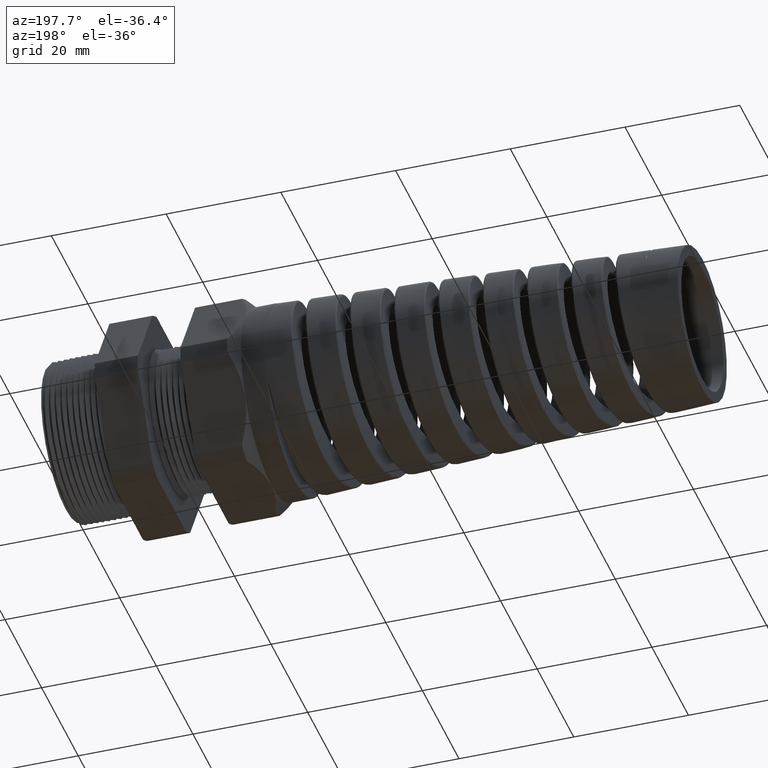
[diagram: clean part render]
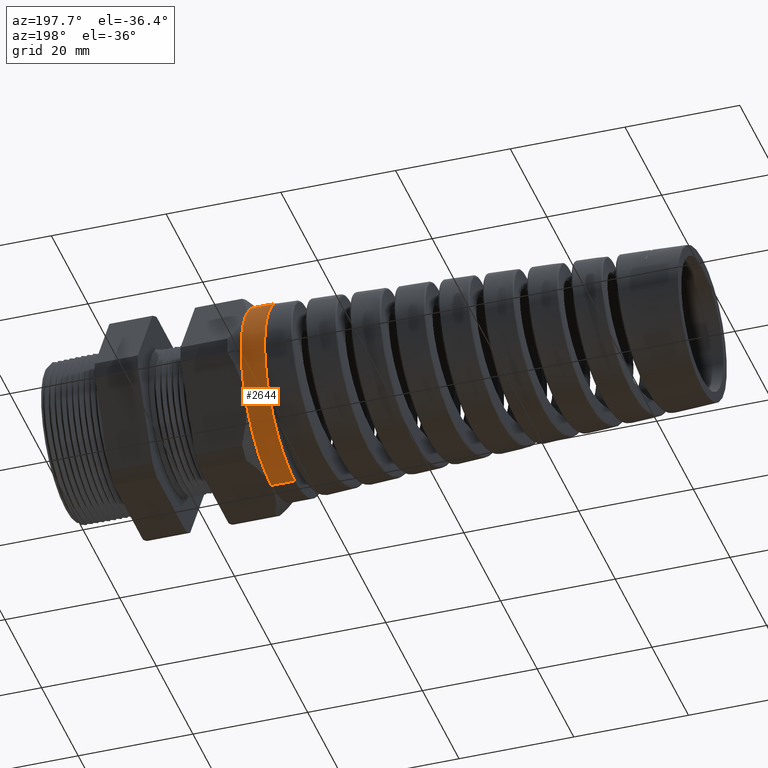
[diagram: same view with one face highlighted and labeled with its STEP entity id]
A machine part, auxiliary view. The second image highlights one B-rep face of the part: STEP entity #2644.
In plain terms, the highlighted cylindrical surface (partial cylindrical patch) has radius 16.51 mm, axis along (1, 0, 0).
Its self-contained STEP definition (entity closure, byte-faithful):
#2644 = ADVANCED_FACE ( 'NONE', ( #14442 ), #14568, .T. ) ;
#2645 = EDGE_LOOP ( 'NONE', ( #2740, #2746, #2663, #2730, #2677, #3044 ) ) ;
#2659 = VERTEX_POINT ( 'NONE', #14613 ) ;
#2660 = VERTEX_POINT ( 'NONE', #14612 ) ;
#2662 = VERTEX_POINT ( 'NONE', #14610 ) ;
#2663 = ORIENTED_EDGE ( 'NONE', *, *, #2733, .F. ) ;
#2677 = ORIENTED_EDGE ( 'NONE', *, *, #2717, .F. ) ;
#2711 = VERTEX_POINT ( 'NONE', #14697 ) ;
#2717 = EDGE_CURVE ( 'NONE', #2662, #2711, #14719, .T. ) ;
#2729 = EDGE_CURVE ( 'NONE', #2711, #2660, #14714, .T. ) ;
#2730 = ORIENTED_EDGE ( 'NONE', *, *, #2729, .F. ) ;
#2733 = EDGE_CURVE ( 'NONE', #2660, #2659, #14704, .T. ) ;
#2739 = EDGE_CURVE ( 'NONE', #2742, #2744, #14806, .T. ) ;
#2740 = ORIENTED_EDGE ( 'NONE', *, *, #2739, .F. ) ;
#2742 = VERTEX_POINT ( 'NONE', #14796 ) ;
#2743 = EDGE_CURVE ( 'NONE', #2742, #2659, #14795, .T. ) ;
#2744 = VERTEX_POINT ( 'NONE', #14791 ) ;
#2746 = ORIENTED_EDGE ( 'NONE', *, *, #2743, .T. ) ;
#3044 = ORIENTED_EDGE ( 'NONE', *, *, #3045, .F. ) ;
#3045 = EDGE_CURVE ( 'NONE', #2744, #2662, #15354, .T. ) ;
#14442 = FACE_OUTER_BOUND ( 'NONE', #2645, .T. ) ;
#14443 = CARTESIAN_POINT ( 'NONE',  ( 0.09602717987635048200, 0.0000000000000000000, 0.0000000000000000000 ) ) ;
#14565 = DIRECTION ( 'NONE',  ( 0.0000000000000000000, 0.0000000000000000000, -1.000000000000000000 ) ) ;
#14566 = DIRECTION ( 'NONE',  ( 1.000000000000000000, 0.0000000000000000000, 0.0000000000000000000 ) ) ;
#14567 = AXIS2_PLACEMENT_3D ( 'NONE', #14443, #14566, #14565 ) ;
#14568 = CYLINDRICAL_SURFACE ( 'NONE', #14567, 0.6500000000000000200 ) ;
#14610 = CARTESIAN_POINT ( 'NONE',  ( -1.291889763779527500, 0.0000000000000000000, -0.6500000000000001300 ) ) ;
#14612 = CARTESIAN_POINT ( 'NONE',  ( -1.291889763779527500, 0.5629165124598853900, 0.3250000000000004000 ) ) ;
#14613 = CARTESIAN_POINT ( 'NONE',  ( -1.291889763779527500, 0.0000000000000000000, 0.6499999999999999100 ) ) ;
#14697 = CARTESIAN_POINT ( 'NONE',  ( -1.291889763779527500, 0.5629165124598852800, -0.3249999999999997300 ) ) ;
#14699 = CARTESIAN_POINT ( 'NONE',  ( -1.453597361040340100, 0.0000000000000000000, 0.0000000000000000000 ) ) ;
#14700 = DIRECTION ( 'NONE',  ( 0.0000000000000000000, 0.0000000000000000000, -1.000000000000000000 ) ) ;
#14701 = DIRECTION ( 'NONE',  ( 1.000000000000000000, 0.0000000000000000000, 0.0000000000000000000 ) ) ;
#14702 = CARTESIAN_POINT ( 'NONE',  ( -1.291889763779527500, 0.0000000000000000000, 0.0000000000000000000 ) ) ;
#14703 = AXIS2_PLACEMENT_3D ( 'NONE', #14702, #14701, #14700 ) ;
#14704 = CIRCLE ( 'NONE', #14703, 0.6500000000000000200 ) ;
#14710 = DIRECTION ( 'NONE',  ( 0.0000000000000000000, 0.0000000000000000000, -1.000000000000000000 ) ) ;
#14711 = DIRECTION ( 'NONE',  ( 1.000000000000000000, 0.0000000000000000000, 0.0000000000000000000 ) ) ;
#14712 = CARTESIAN_POINT ( 'NONE',  ( -1.291889763779527500, 0.0000000000000000000, 0.0000000000000000000 ) ) ;
#14713 = AXIS2_PLACEMENT_3D ( 'NONE', #14712, #14711, #14710 ) ;
#14714 = CIRCLE ( 'NONE', #14713, 0.6500000000000000200 ) ;
#14715 = DIRECTION ( 'NONE',  ( 0.0000000000000000000, 0.0000000000000000000, -1.000000000000000000 ) ) ;
#14716 = DIRECTION ( 'NONE',  ( 1.000000000000000000, 0.0000000000000000000, 0.0000000000000000000 ) ) ;
#14717 = CARTESIAN_POINT ( 'NONE',  ( -1.291889763779527500, 0.0000000000000000000, 0.0000000000000000000 ) ) ;
#14718 = AXIS2_PLACEMENT_3D ( 'NONE', #14717, #14716, #14715 ) ;
#14719 = CIRCLE ( 'NONE', #14718, 0.6500000000000000200 ) ;
#14791 = CARTESIAN_POINT ( 'NONE',  ( -1.453597361040340100, 0.0000000000000000000, -0.6499999999999999100 ) ) ;
#14792 = DIRECTION ( 'NONE',  ( 1.000000000000000000, 0.0000000000000000000, 0.0000000000000000000 ) ) ;
#14793 = VECTOR ( 'NONE', #14792, 39.37007874015748100 ) ;
#14794 = CARTESIAN_POINT ( 'NONE',  ( 0.09602717987635048200, 7.960204194457796700E-017, 0.6500000000000000200 ) ) ;
#14795 = LINE ( 'NONE', #14794, #14793 ) ;
#14796 = CARTESIAN_POINT ( 'NONE',  ( -1.453597361040340100, 7.960204194457796700E-017, 0.6499999999999999100 ) ) ;
#14803 = DIRECTION ( 'NONE',  ( 0.0000000000000000000, 0.0000000000000000000, 1.000000000000000000 ) ) ;
#14804 = DIRECTION ( 'NONE',  ( -1.000000000000000000, 0.0000000000000000000, 0.0000000000000000000 ) ) ;
#14805 = AXIS2_PLACEMENT_3D ( 'NONE', #14699, #14804, #14803 ) ;
#14806 = CIRCLE ( 'NONE', #14805, 0.6499999999999999100 ) ;
#15351 = DIRECTION ( 'NONE',  ( 1.000000000000000000, 0.0000000000000000000, 0.0000000000000000000 ) ) ;
#15352 = VECTOR ( 'NONE', #15351, 39.37007874015748100 ) ;
#15353 = CARTESIAN_POINT ( 'NONE',  ( 0.09602717987635048200, 0.0000000000000000000, -0.6500000000000000200 ) ) ;
#15354 = LINE ( 'NONE', #15353, #15352 ) ;